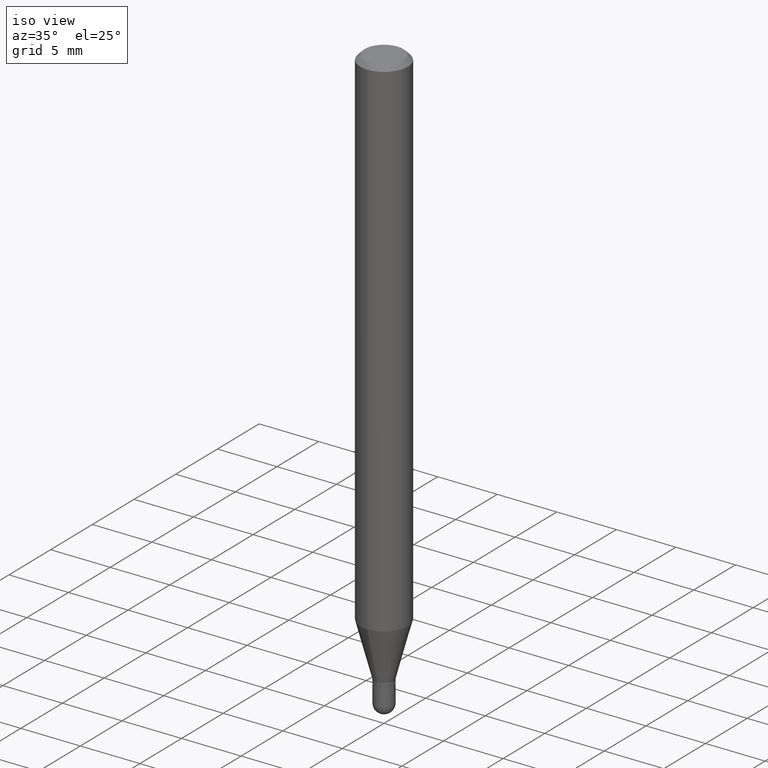
[diagram: clean part render]
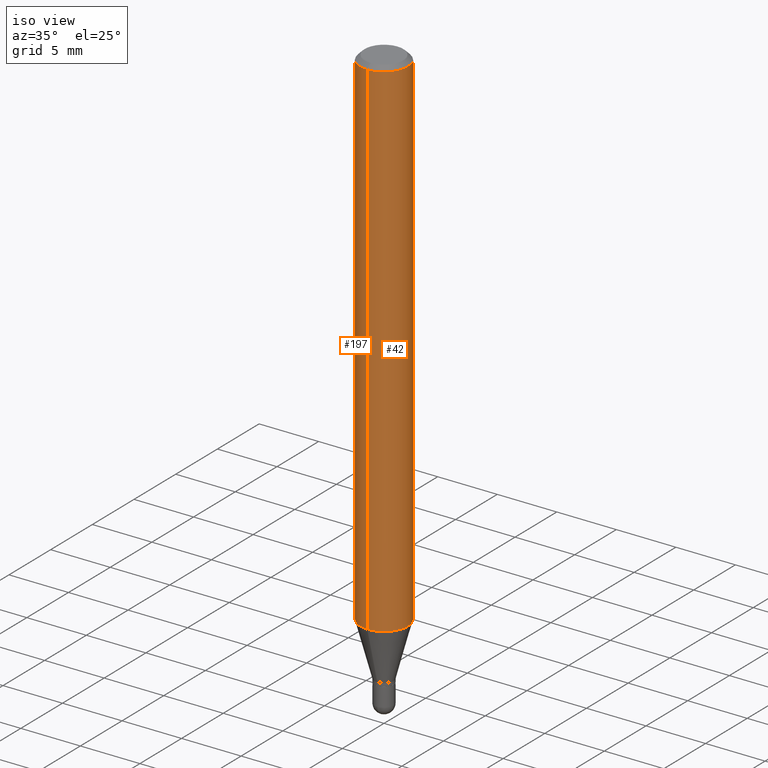
[diagram: same view with one multi-face feature highlighted, each face labeled with its STEP entity id]
A machine part, iso view. The highlighted faces form ONE feature: a constant-radius fillet chain: 2 tangent blend faces with common blend radius 2.0002 mm. The faces share edges in the B-rep.
Their STEP definitions:
[1] entity #42 (Cylinder):
#2 = DIRECTION ( 'NONE',  ( -6.982962677686264344E-15, -1.000000000000000000, 3.469013325287953293E-15 ) ) ;
#27 = ORIENTED_EDGE ( 'NONE', *, *, #54, .F. ) ;
#33 = CARTESIAN_POINT ( 'NONE',  ( 4.125821572559714249E-29, -5.890800079852744300E-15, -1.687160599342371059 ) ) ;
#34 = CYLINDRICAL_SURFACE ( 'NONE', #115, 0.07875000000000000056 ) ;
#42 = ADVANCED_FACE ( 'NONE', ( #509 ), #34, .T. ) ;
#43 = CARTESIAN_POINT ( 'NONE',  ( 5.595524044111203155E-16, 0.07874999999999994504, -0.01500000000000004108 ) ) ;
#46 = EDGE_CURVE ( 'NONE', #206, #414, #467, .T. ) ;
#47 = DIRECTION ( 'NONE',  ( -6.982962677686264344E-15, -1.000000000000000000, 3.496114991891765576E-15 ) ) ;
#54 = EDGE_CURVE ( 'NONE', #485, #196, #145, .T. ) ;
#55 = ORIENTED_EDGE ( 'NONE', *, *, #377, .T. ) ;
#56 = CARTESIAN_POINT ( 'NONE',  ( -5.499083108677930499E-16, -0.07875000000000004219, -0.01499999999999948944 ) ) ;
#63 = CARTESIAN_POINT ( 'NONE',  ( 5.595524044111199211E-16, 0.07874999999999408862, -1.687160599342371503 ) ) ;
#115 = AXIS2_PLACEMENT_3D ( 'NONE', #155, #347, #387 ) ;
#126 = AXIS2_PLACEMENT_3D ( 'NONE', #351, #356, #47 ) ;
#145 = LINE ( 'NONE', #261, #423 ) ;
#154 = DIRECTION ( 'NONE',  ( -2.445423141204159656E-29, 3.491546733694993619E-15, 1.000000000000000000 ) ) ;
#155 = CARTESIAN_POINT ( 'NONE',  ( 0.000000000000000000, 0.000000000000000000, 0.000000000000000000 ) ) ;
#156 = VECTOR ( 'NONE', #305, 39.37007874015748143 ) ;
#196 = VERTEX_POINT ( 'NONE', #56 ) ;
#206 = VERTEX_POINT ( 'NONE', #63 ) ;
#215 = CIRCLE ( 'NONE', #126, 0.07875000000000000056 ) ;
#216 = DIRECTION ( 'NONE',  ( -2.445423141204159656E-29, 3.491546733694993225E-15, 1.000000000000000000 ) ) ;
#245 = CARTESIAN_POINT ( 'NONE',  ( -5.499083108677523249E-16, -0.07875000000000592637, -1.687160599342370837 ) ) ;
#261 = CARTESIAN_POINT ( 'NONE',  ( -5.499083108677933457E-16, -0.07875000000000000056, 2.749593052784807303E-16 ) ) ;
#271 = CARTESIAN_POINT ( 'NONE',  ( 5.595524044110787031E-16, 0.07875000000000000056, -2.749593052784807303E-16 ) ) ;
#294 = ORIENTED_EDGE ( 'NONE', *, *, #46, .T. ) ;
#305 = DIRECTION ( 'NONE',  ( -2.445423141204159656E-29, 3.491546733694993225E-15, 1.000000000000000000 ) ) ;
#346 = CIRCLE ( 'NONE', #415, 0.07875000000000000056 ) ;
#347 = DIRECTION ( 'NONE',  ( -2.445423141204159656E-29, 3.491546733694993619E-15, 1.000000000000000000 ) ) ;
#351 = CARTESIAN_POINT ( 'NONE',  ( 3.668134711806182014E-31, -5.237320100542408955E-17, -0.01499999999999976526 ) ) ;
#356 = DIRECTION ( 'NONE',  ( -2.445423141204159656E-29, 3.491546733694993619E-15, 1.000000000000000000 ) ) ;
#377 = EDGE_CURVE ( 'NONE', #485, #206, #346, .T. ) ;
#387 = DIRECTION ( 'NONE',  ( -6.982962677686264344E-15, -1.000000000000000000, 3.491546733694993225E-15 ) ) ;
#414 = VERTEX_POINT ( 'NONE', #43 ) ;
#415 = AXIS2_PLACEMENT_3D ( 'NONE', #33, #154, #2 ) ;
#423 = VECTOR ( 'NONE', #216, 39.37007874015748143 ) ;
#425 = ORIENTED_EDGE ( 'NONE', *, *, #430, .F. ) ;
#430 = EDGE_CURVE ( 'NONE', #196, #414, #215, .T. ) ;
#467 = LINE ( 'NONE', #271, #156 ) ;
#485 = VERTEX_POINT ( 'NONE', #245 ) ;
#503 = EDGE_LOOP ( 'NONE', ( #55, #294, #425, #27 ) ) ;
#509 = FACE_OUTER_BOUND ( 'NONE', #503, .T. ) ;
[2] entity #197 (Cylinder):
#5 = CARTESIAN_POINT ( 'NONE',  ( 4.125821572559714249E-29, -5.890800079852744300E-15, -1.687160599342371059 ) ) ;
#43 = CARTESIAN_POINT ( 'NONE',  ( 5.595524044111203155E-16, 0.07874999999999994504, -0.01500000000000004108 ) ) ;
#44 = AXIS2_PLACEMENT_3D ( 'NONE', #179, #333, #317 ) ;
#46 = EDGE_CURVE ( 'NONE', #206, #414, #467, .T. ) ;
#54 = EDGE_CURVE ( 'NONE', #485, #196, #145, .T. ) ;
#56 = CARTESIAN_POINT ( 'NONE',  ( -5.499083108677930499E-16, -0.07875000000000004219, -0.01499999999999948944 ) ) ;
#58 = DIRECTION ( 'NONE',  ( -2.445423141204159656E-29, 3.491546733694993619E-15, 1.000000000000000000 ) ) ;
#63 = CARTESIAN_POINT ( 'NONE',  ( 5.595524044111199211E-16, 0.07874999999999408862, -1.687160599342371503 ) ) ;
#66 = ORIENTED_EDGE ( 'NONE', *, *, #511, .F. ) ;
#99 = CIRCLE ( 'NONE', #223, 0.07875000000000000056 ) ;
#145 = LINE ( 'NONE', #261, #423 ) ;
#156 = VECTOR ( 'NONE', #305, 39.37007874015748143 ) ;
#164 = DIRECTION ( 'NONE',  ( -2.445423141204159656E-29, 3.491546733694993619E-15, 1.000000000000000000 ) ) ;
#171 = ORIENTED_EDGE ( 'NONE', *, *, #46, .F. ) ;
#179 = CARTESIAN_POINT ( 'NONE',  ( 0.000000000000000000, 0.000000000000000000, 0.000000000000000000 ) ) ;
#184 = EDGE_LOOP ( 'NONE', ( #171, #243, #505, #66 ) ) ;
#188 = CIRCLE ( 'NONE', #268, 0.07875000000000000056 ) ;
#196 = VERTEX_POINT ( 'NONE', #56 ) ;
#197 = ADVANCED_FACE ( 'NONE', ( #204 ), #365, .T. ) ;
#204 = FACE_OUTER_BOUND ( 'NONE', #184, .T. ) ;
#206 = VERTEX_POINT ( 'NONE', #63 ) ;
#216 = DIRECTION ( 'NONE',  ( -2.445423141204159656E-29, 3.491546733694993225E-15, 1.000000000000000000 ) ) ;
#223 = AXIS2_PLACEMENT_3D ( 'NONE', #5, #164, #476 ) ;
#243 = ORIENTED_EDGE ( 'NONE', *, *, #473, .T. ) ;
#245 = CARTESIAN_POINT ( 'NONE',  ( -5.499083108677523249E-16, -0.07875000000000592637, -1.687160599342370837 ) ) ;
#261 = CARTESIAN_POINT ( 'NONE',  ( -5.499083108677933457E-16, -0.07875000000000000056, 2.749593052784807303E-16 ) ) ;
#268 = AXIS2_PLACEMENT_3D ( 'NONE', #443, #58, #403 ) ;
#271 = CARTESIAN_POINT ( 'NONE',  ( 5.595524044110787031E-16, 0.07875000000000000056, -2.749593052784807303E-16 ) ) ;
#305 = DIRECTION ( 'NONE',  ( -2.445423141204159656E-29, 3.491546733694993225E-15, 1.000000000000000000 ) ) ;
#317 = DIRECTION ( 'NONE',  ( -6.982962677686264344E-15, -1.000000000000000000, 3.491546733694993225E-15 ) ) ;
#333 = DIRECTION ( 'NONE',  ( -2.445423141204159656E-29, 3.491546733694993619E-15, 1.000000000000000000 ) ) ;
#365 = CYLINDRICAL_SURFACE ( 'NONE', #44, 0.07875000000000000056 ) ;
#403 = DIRECTION ( 'NONE',  ( -6.982962677686264344E-15, -1.000000000000000000, 3.496114991891765576E-15 ) ) ;
#414 = VERTEX_POINT ( 'NONE', #43 ) ;
#423 = VECTOR ( 'NONE', #216, 39.37007874015748143 ) ;
#443 = CARTESIAN_POINT ( 'NONE',  ( 3.668134711806182014E-31, -5.237320100542408955E-17, -0.01499999999999976526 ) ) ;
#467 = LINE ( 'NONE', #271, #156 ) ;
#473 = EDGE_CURVE ( 'NONE', #206, #485, #99, .T. ) ;
#476 = DIRECTION ( 'NONE',  ( -6.982962677686264344E-15, -1.000000000000000000, 3.469013325287953293E-15 ) ) ;
#485 = VERTEX_POINT ( 'NONE', #245 ) ;
#505 = ORIENTED_EDGE ( 'NONE', *, *, #54, .T. ) ;
#511 = EDGE_CURVE ( 'NONE', #414, #196, #188, .T. ) ;